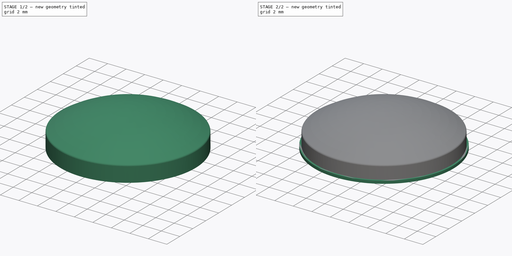
[diagram: build sequence overview — one tinted view per stage of 2, left to right]
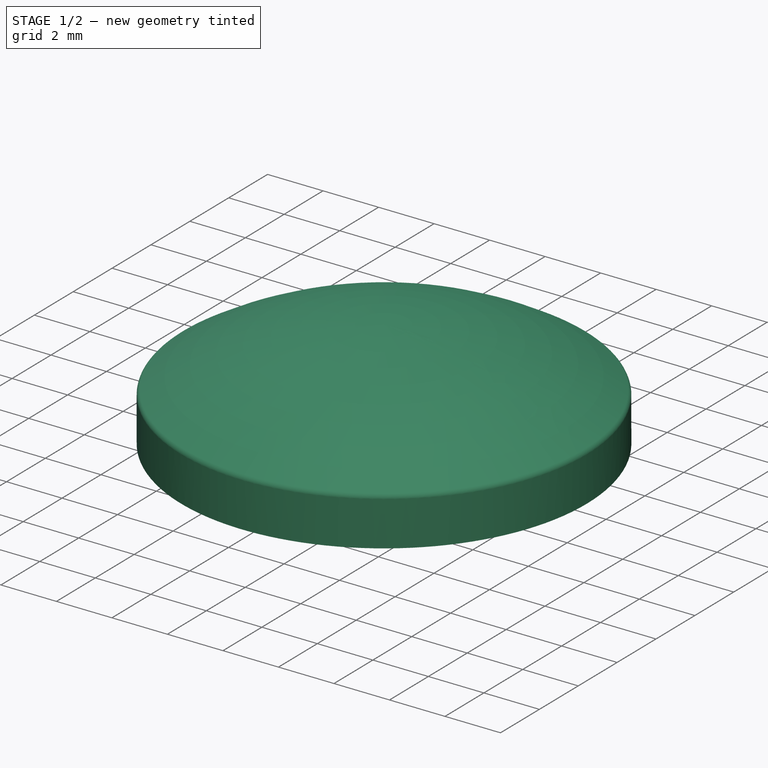
[diagram: stage 1 of 2 — iso view after this stage's code; geometry added in this stage tinted green]
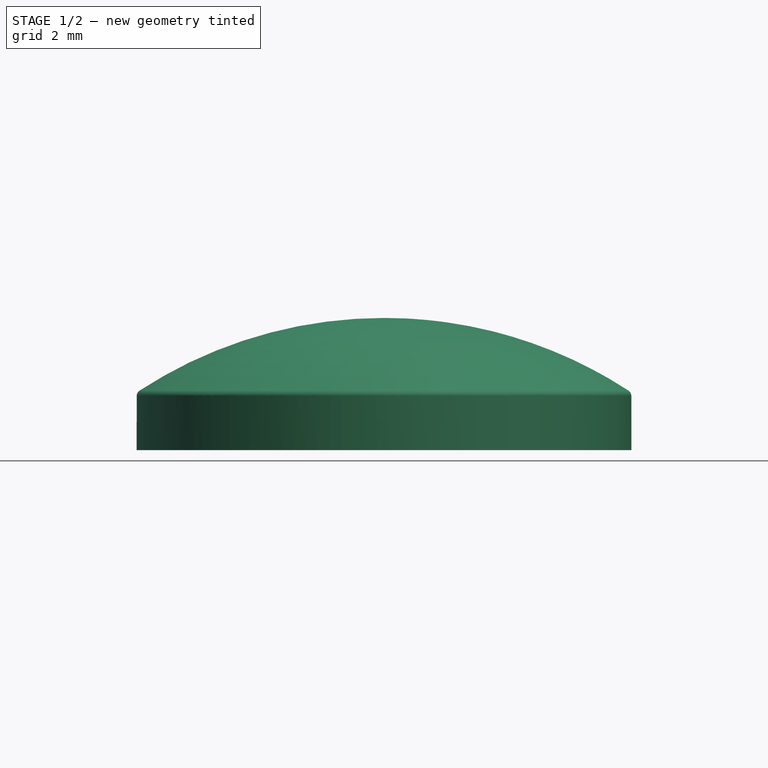
[diagram: stage 1 of 2 — front view after this stage's code; geometry added in this stage tinted green]
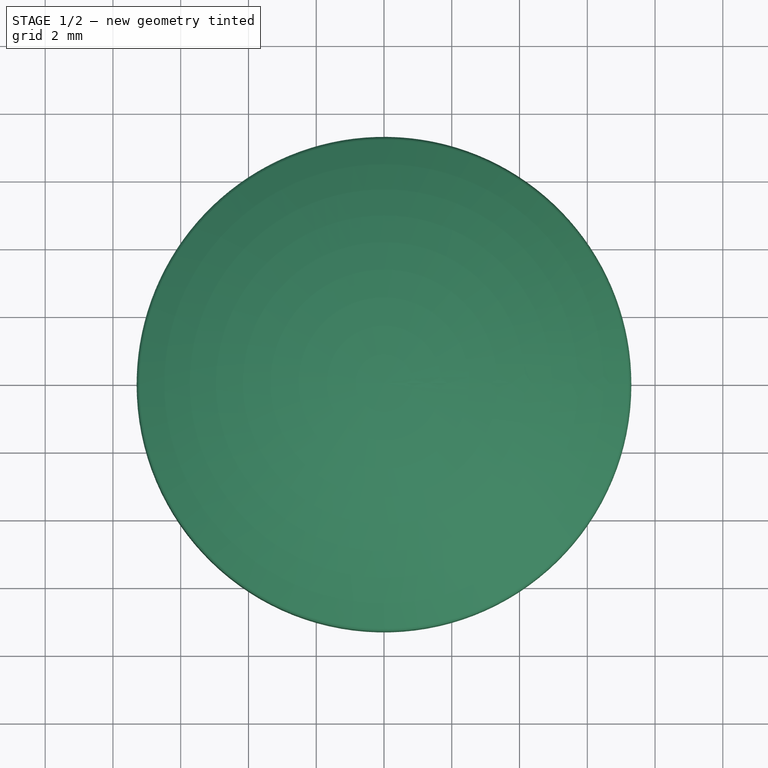
[diagram: stage 1 of 2 — top view after this stage's code; geometry added in this stage tinted green]
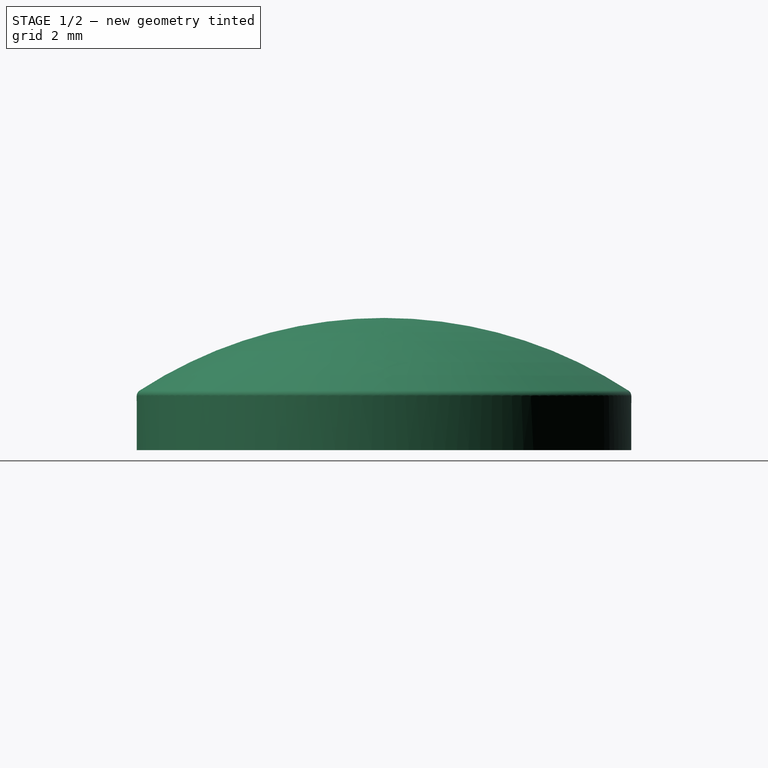
[diagram: stage 1 of 2 — right view after this stage's code; geometry added in this stage tinted green]
FCSTD DOCUMENT  (FreeCAD 0.14R3702 (Git))
Label: eyes
License: CC-BY 3.0
LicenseURL: http://creativecommons.org/licenses/by/3.0/
objects: Sketcher::SketchObject×3, PartDesign::Pad×2, Part::Feature×2, PartDesign::Revolution×1, Part::Fillet×1
note: 12 computed .brp shape members not serialized (recipe doc carries the construction recipe); baked Part::Feature solids carry a one-line shape summary decoded from their .brp

FEATURE [Sketcher::SketchObject] Sketch  label="eye-body-sketch"
  Placement = pos=(0,0,0) rot=(-1,0,0;4.71239rad)
  sketch-geometry (4):
    g0: LineSegment StartX=7.3 StartY=0 StartZ=0 EndX=7.3 EndY=1.7 EndZ=0
    g1: LineSegment StartX=0 StartY=3.9 StartZ=0 EndX=0 EndY=0 EndZ=0
    g2: ArcOfCircle CenterX=0 CenterY=-9.31136 CenterZ=0 NormalX=0 NormalY=0 NormalZ=1 Radius=13.2114 StartAngle=0.98537 EndAngle=1.5708
    g3: LineSegment StartX=0 StartY=0 StartZ=0 EndX=7.3 EndY=0 EndZ=0
  constraints (13):
    c: PointOnObject(g0,g-1)
    c: Vertical(g0)
    c: DistanceX(g-1,g0) = 7.3
    c: PointOnObject(g1,g-2)
    c: Coincident(g1,g-1)
    c: DistanceY(g1) = -3.9
    c: DistanceY(g0) = 1.7
    c: PointOnObject(g2,g1)
    c: Coincident(g2,g1)
    c: Coincident(g2,g0)
    c: Horizontal(g3)
    c: Coincident(g3,g0)
    c: Coincident(g3,g-1)
FEATURE [PartDesign::Revolution] Revolution  label="eye-body-1"
  Angle = 360
  Axis = (0,0,1)
  Base = (0,0,0)
  Placement = pos=(0,0,0) rot=(-1,0,0;4.71239rad)
  ReferenceAxis = -> Sketch [V_Axis]
  Reversed = true
  Sketch = -> Sketch
FEATURE [Part::Feature] Pad002001  label="black-eye"
  Placement = pos=(0,-2.2,0) rot=(0,0,1;0rad)
  shape: bbox 9.7 x 9.7 x 0.4 mm, 3 faces (baked)
FEATURE [Part::Fillet] Fillet  label="eye-body"
  Base = -> Revolution
  Edges = 1 edges r=0.2: [Edge2]
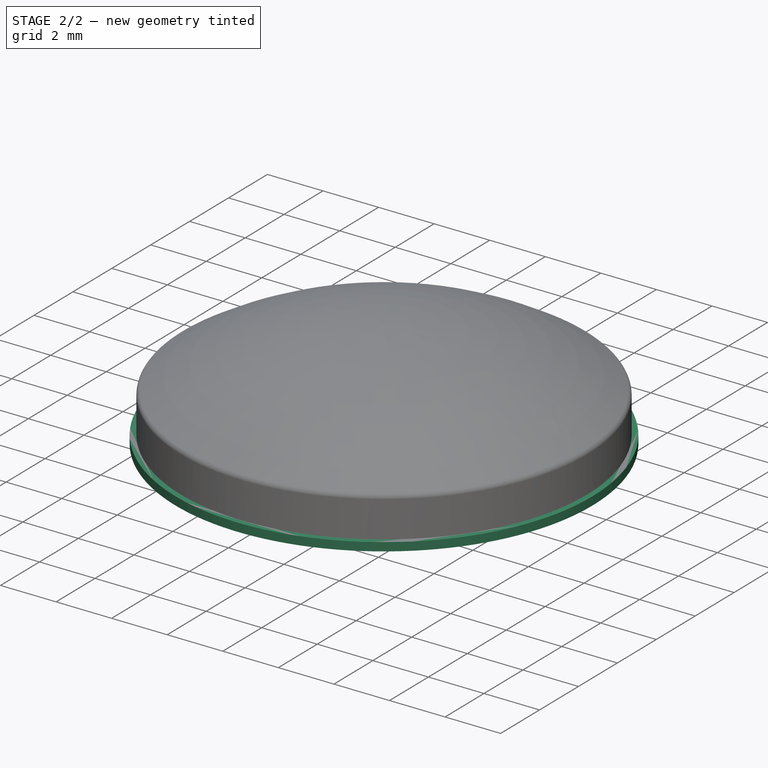
[diagram: stage 2 of 2 — iso view after this stage's code; geometry added in this stage tinted green]
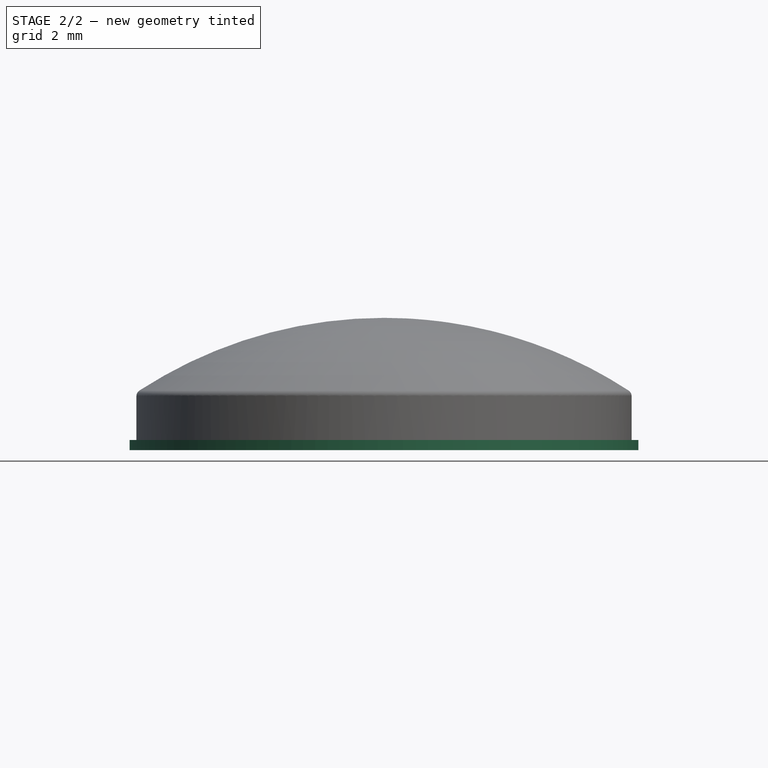
[diagram: stage 2 of 2 — front view after this stage's code; geometry added in this stage tinted green]
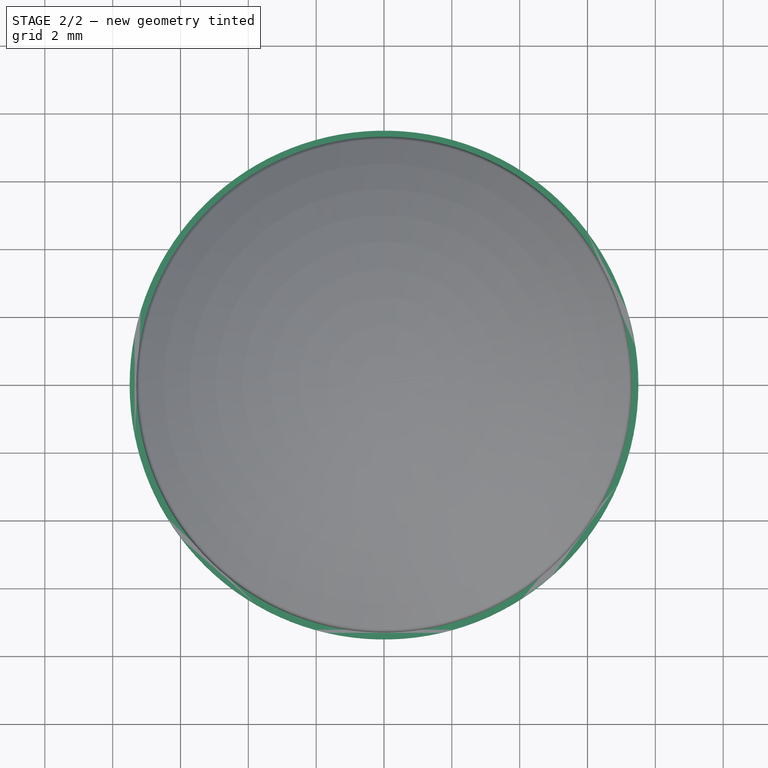
[diagram: stage 2 of 2 — top view after this stage's code; geometry added in this stage tinted green]
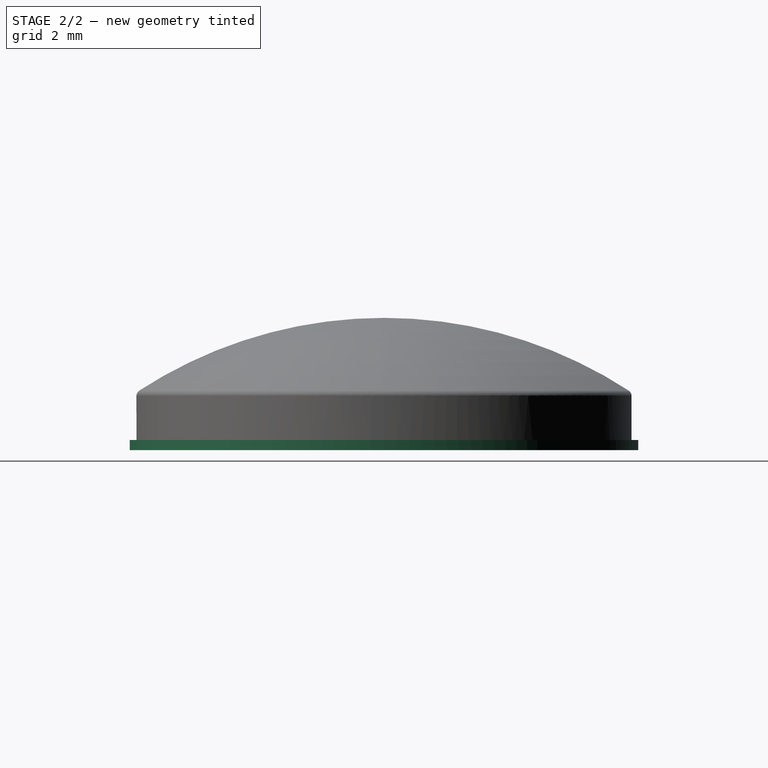
[diagram: stage 2 of 2 — right view after this stage's code; geometry added in this stage tinted green]
FEATURE [Sketcher::SketchObject] Sketch001  label="eye-base-sketch"
  sketch-geometry (1):
    g0: Circle CenterX=0 CenterY=0 CenterZ=0 NormalX=0 NormalY=0 NormalZ=1 Radius=7.5
  constraints (2):
    c: Coincident(g0,g-1)
    c: Radius(g0) = 7.5
FEATURE [PartDesign::Pad] Pad  label="eye-base-src"
  Length = 0.3
  Length2 = 100
  Sketch = -> Sketch001
  Type = 0
FEATURE [Part::Feature] Pad001  label="eye-base"
  Placement = pos=(0,0,-0.3) rot=(0,0,1;0rad)
  shape: bbox 15 x 15 x 0.3 mm, 3 faces (baked)
FEATURE [Sketcher::SketchObject] Sketch002  label="black-eye-sketch"
  sketch-geometry (1):
    g0: Circle CenterX=0 CenterY=0 CenterZ=0 NormalX=0 NormalY=0 NormalZ=1 Radius=4.85
  constraints (2):
    c: Coincident(g0,g-1)
    c: Radius(g0) = 4.85
FEATURE [PartDesign::Pad] Pad002  label="blak-eye-src"
  Length = 0.4
  Length2 = 100
  Sketch = -> Sketch002
  Type = 0
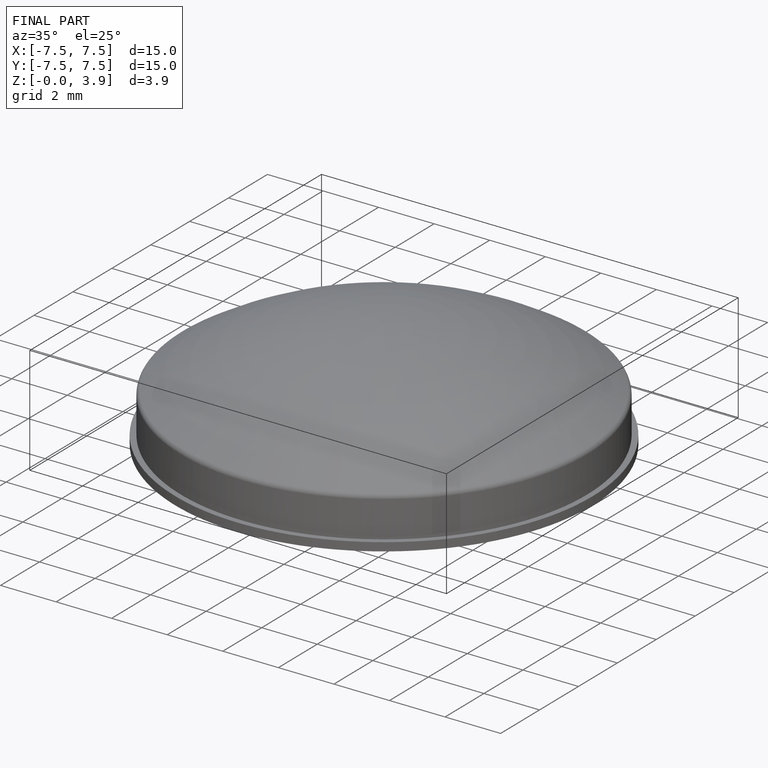
[diagram: finished part — iso view with bounding-box wireframe]
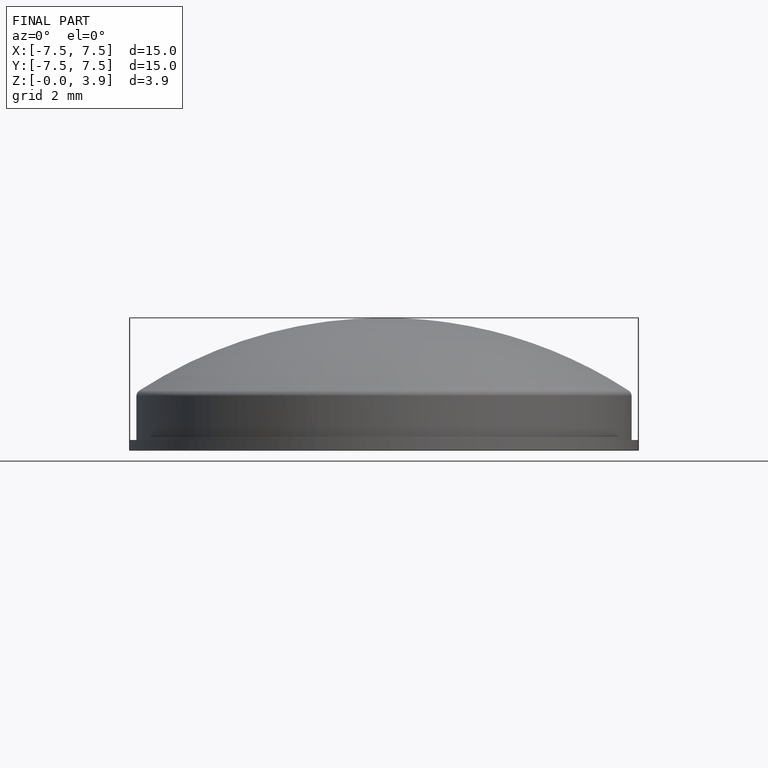
[diagram: finished part — front view with bounding-box wireframe]
